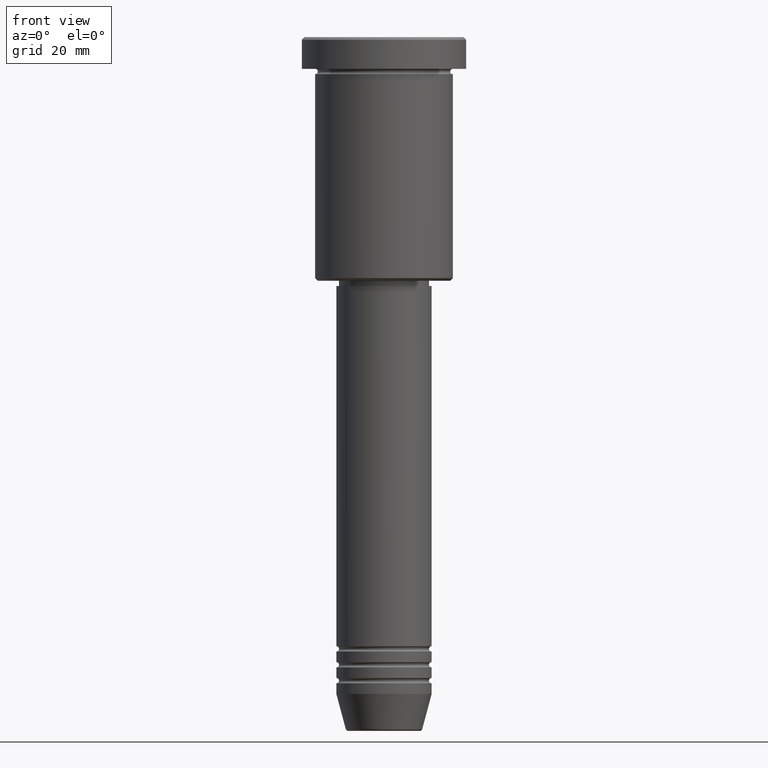
[diagram: clean part render]
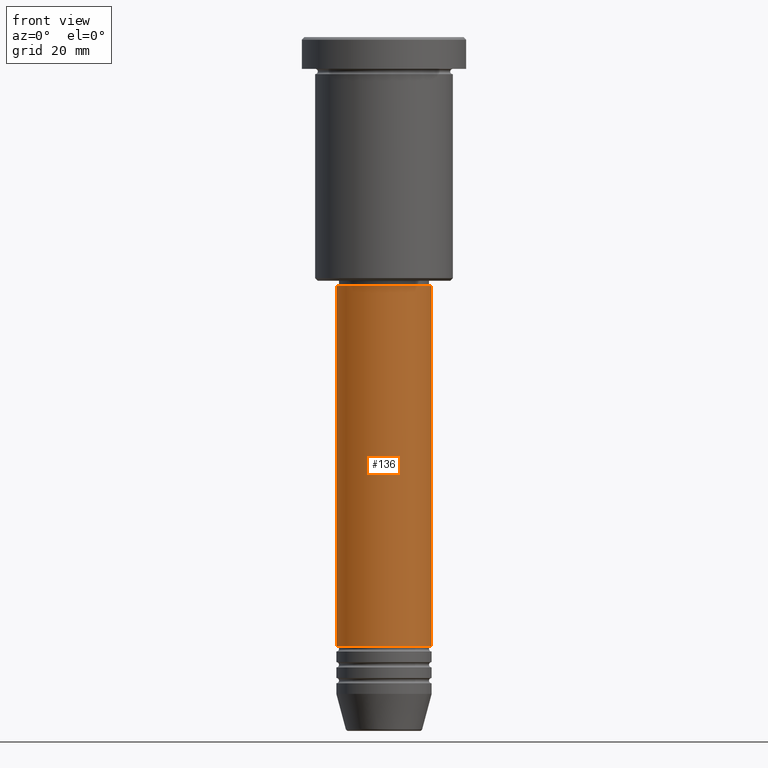
[diagram: same view with one face highlighted and labeled with its STEP entity id]
A machine part, front view. The second image highlights one B-rep face of the part: STEP entity #136.
In plain terms, the highlighted cylindrical surface (partial cylindrical patch) has radius 9 mm, axis along (-0, -0, 1).
Its self-contained STEP definition (entity closure, byte-faithful):
#28 = DIRECTION ( 'NONE',  ( 1.000000000000000000, 0.000000000000000000, 0.000000000000000000 ) ) ;
#35 = CARTESIAN_POINT ( 'NONE',  ( 0.000000000000000000, 0.000000000000000000, -46.99999999999999289 ) ) ;
#64 = ORIENTED_EDGE ( 'NONE', *, *, #844, .F. ) ;
#99 = EDGE_CURVE ( 'NONE', #799, #810, #355, .T. ) ;
#119 = CYLINDRICAL_SURFACE ( 'NONE', #483, 9.000000000000000000 ) ;
#122 = EDGE_CURVE ( 'NONE', #610, #579, #139, .T. ) ;
#136 = ADVANCED_FACE ( 'NONE', ( #249 ), #119, .T. ) ;
#139 = CIRCLE ( 'NONE', #809, 9.000000000000000000 ) ;
#162 = ORIENTED_EDGE ( 'NONE', *, *, #99, .F. ) ;
#232 = CARTESIAN_POINT ( 'NONE',  ( 9.000000000000000000, 0.000000000000000000, -114.9999999999999574 ) ) ;
#233 = DIRECTION ( 'NONE',  ( -0.000000000000000000, -0.000000000000000000, 1.000000000000000000 ) ) ;
#249 = FACE_OUTER_BOUND ( 'NONE', #1155, .T. ) ;
#278 = CARTESIAN_POINT ( 'NONE',  ( -9.000000000000000000, 1.102182119232617714E-15, -46.99999999999999289 ) ) ;
#308 = DIRECTION ( 'NONE',  ( -0.000000000000000000, -0.000000000000000000, 1.000000000000000000 ) ) ;
#323 = VECTOR ( 'NONE', #308, 1000.000000000000000 ) ;
#355 = CIRCLE ( 'NONE', #1013, 9.000000000000000000 ) ;
#371 = DIRECTION ( 'NONE',  ( -0.000000000000000000, -0.000000000000000000, 1.000000000000000000 ) ) ;
#375 = CARTESIAN_POINT ( 'NONE',  ( 9.000000000000000000, 0.000000000000000000, -46.99999999999999289 ) ) ;
#483 = AXIS2_PLACEMENT_3D ( 'NONE', #760, #1059, #28 ) ;
#494 = CARTESIAN_POINT ( 'NONE',  ( -9.000000000000000000, 1.102182119232617714E-15, -114.9999999999999574 ) ) ;
#579 = VERTEX_POINT ( 'NONE', #232 ) ;
#610 = VERTEX_POINT ( 'NONE', #494 ) ;
#735 = EDGE_CURVE ( 'NONE', #579, #810, #802, .T. ) ;
#760 = CARTESIAN_POINT ( 'NONE',  ( 0.000000000000000000, 0.000000000000000000, 0.000000000000000000 ) ) ;
#799 = VERTEX_POINT ( 'NONE', #278 ) ;
#802 = LINE ( 'NONE', #1076, #1055 ) ;
#809 = AXIS2_PLACEMENT_3D ( 'NONE', #1046, #233, #961 ) ;
#810 = VERTEX_POINT ( 'NONE', #375 ) ;
#844 = EDGE_CURVE ( 'NONE', #610, #799, #853, .T. ) ;
#846 = ORIENTED_EDGE ( 'NONE', *, *, #122, .T. ) ;
#853 = LINE ( 'NONE', #1016, #323 ) ;
#878 = DIRECTION ( 'NONE',  ( 1.000000000000000000, 0.000000000000000000, 0.000000000000000000 ) ) ;
#891 = ORIENTED_EDGE ( 'NONE', *, *, #735, .T. ) ;
#961 = DIRECTION ( 'NONE',  ( 1.000000000000000000, 0.000000000000000000, 0.000000000000000000 ) ) ;
#968 = DIRECTION ( 'NONE',  ( -0.000000000000000000, -0.000000000000000000, 1.000000000000000000 ) ) ;
#1013 = AXIS2_PLACEMENT_3D ( 'NONE', #35, #968, #878 ) ;
#1016 = CARTESIAN_POINT ( 'NONE',  ( -9.000000000000000000, 1.102182119232617714E-15, 0.000000000000000000 ) ) ;
#1046 = CARTESIAN_POINT ( 'NONE',  ( 0.000000000000000000, 0.000000000000000000, -114.9999999999999574 ) ) ;
#1055 = VECTOR ( 'NONE', #371, 1000.000000000000000 ) ;
#1059 = DIRECTION ( 'NONE',  ( -0.000000000000000000, -0.000000000000000000, 1.000000000000000000 ) ) ;
#1076 = CARTESIAN_POINT ( 'NONE',  ( 9.000000000000000000, 0.000000000000000000, 0.000000000000000000 ) ) ;
#1155 = EDGE_LOOP ( 'NONE', ( #64, #846, #891, #162 ) ) ;